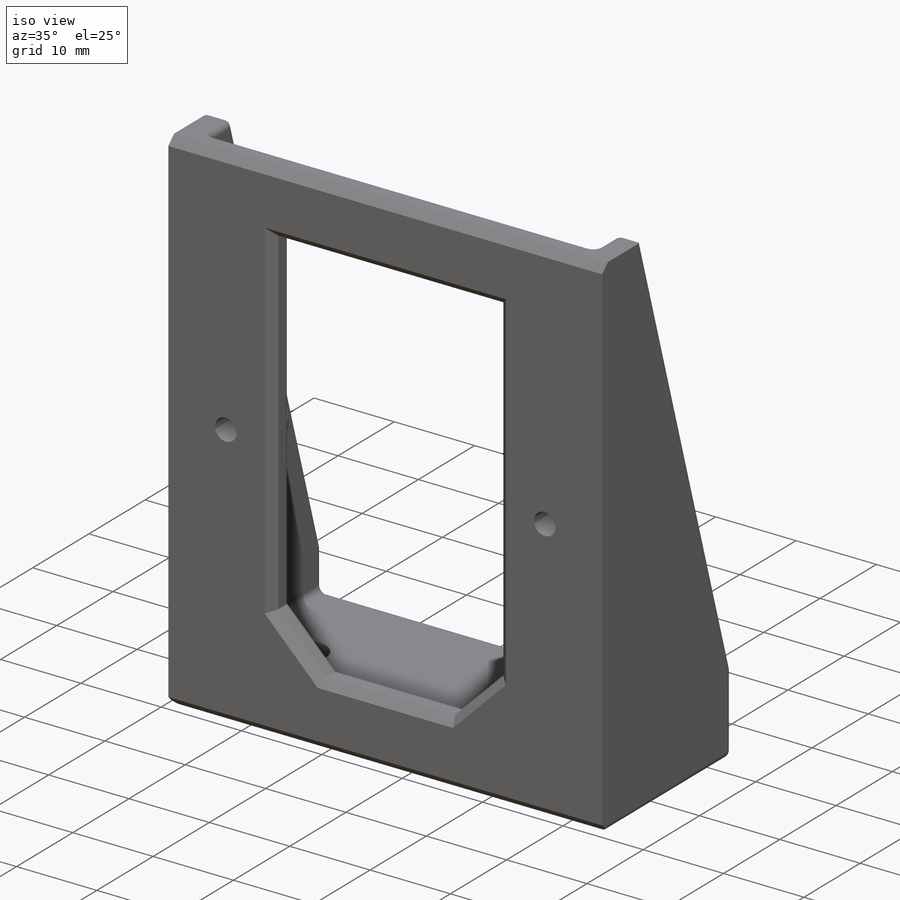
[diagram: iso view]
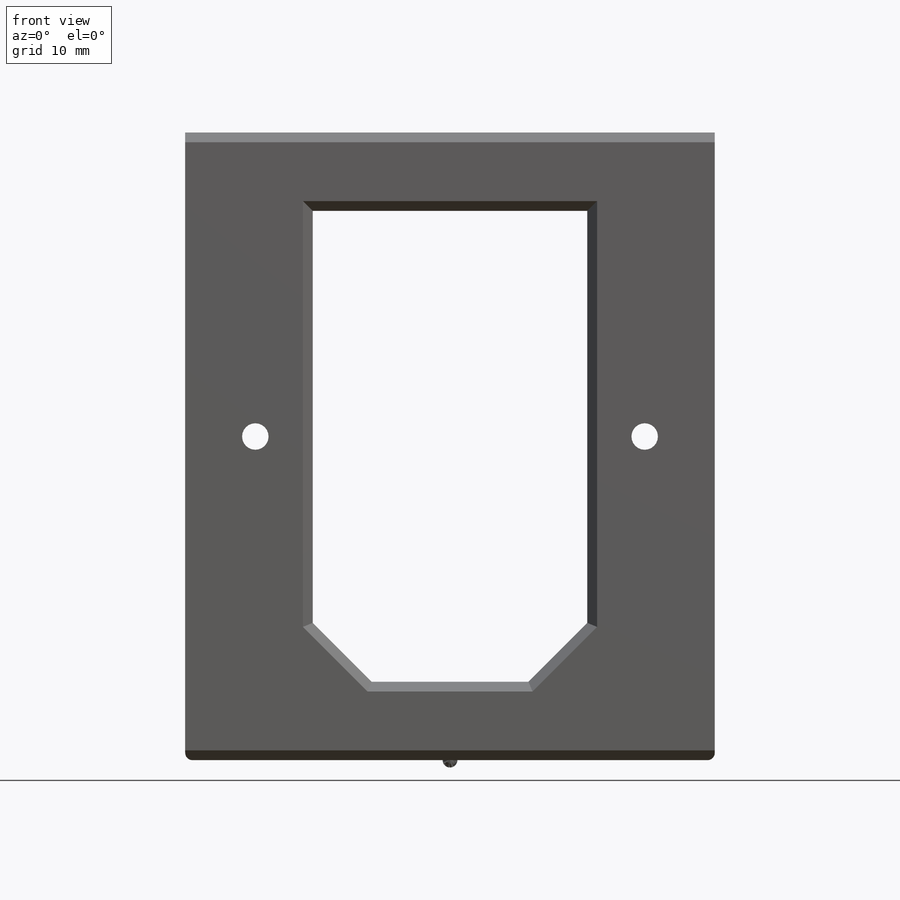
[diagram: front view]
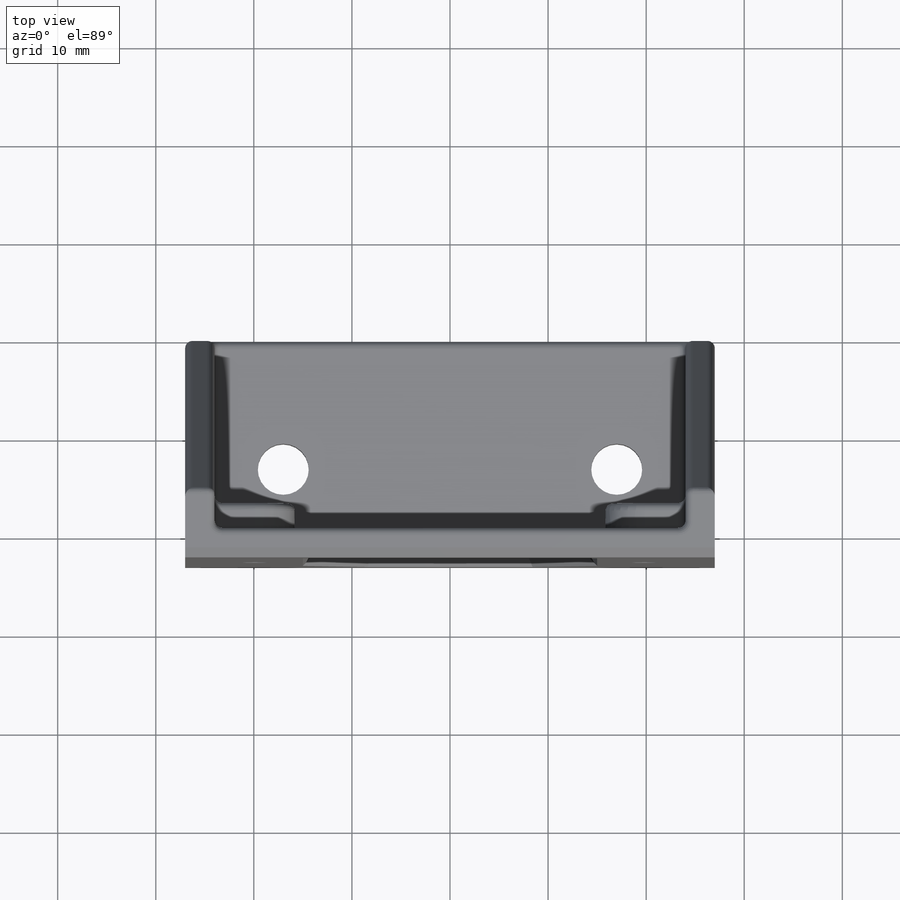
[diagram: top view]
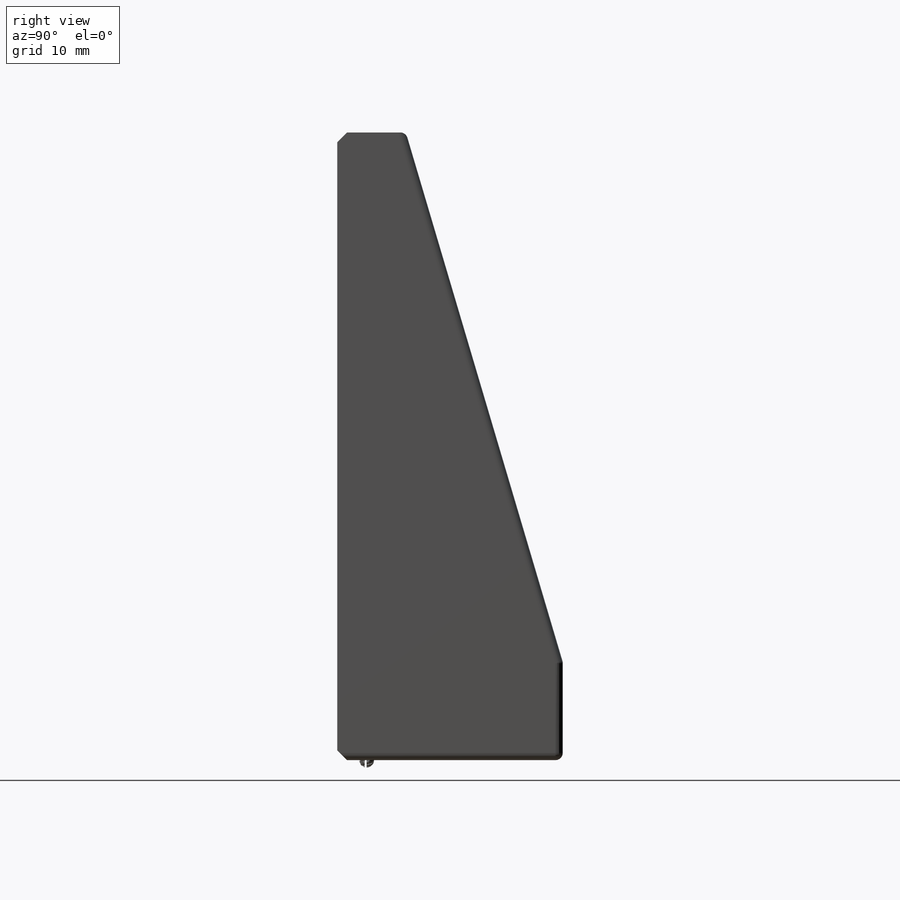
[diagram: right view]
SOLIDWORKS PART (.sldprt)
format: sldprt  version: not decoded by parser v0  size: 482,816 bytes
history: native  units: mm
features: sketch x5, extrude x4, material x1, mirror x1, cut_extrude x1, fillet x1, chamfer x1 (+13 scaffold rows collapsed)
feature tree (27):
  scaffold x13  (default folders/planes/origin — collapsed)
  material  "ABS"
  sketch  "Sketch1"  dims[c1.D7=2.7mm c1.D8=2.7mm c1.D9=2.7mm c1.D1=54.0mm c1.D2=64.0mm c1.D3=48.0mm c1.D4=16.0mm c1.D5=28.0mm c1.D6=6.0mm c2.D8=39.7mm c2.D9=33.0mm c2.D10=23.0mm]
  extrude  "Boss-Extrude1"  Depth=3mm
  sketch  "Sketch2"  dims[c1.D1=20.2mm c1.D2=4.0mm c1.D3=10.0mm c1.D4=4.0mm c2.D1=23.0mm]
  extrude  "Boss-Extrude2"  Depth=3mm
  mirror  "Mirror1"
  sketch  "Sketch3"  dims[D1=8.0mm]
  extrude  "Boss-Extrude3"  Depth=3mm
  sketch  "Sketch4"
  cut_extrude  "Cut-Extrude2"  [1 undecoded]
  sketch  "Sketch5"  dims[c1.D2=5.2mm c1.D3=5.2mm c1.D4=5.2mm c1.D1=10.0mm c2.D3=7.0mm c2.D4=7.0mm]
  extrude  "Boss-Extrude4"  Depth=5mm
  fillet  "Fillet3"  Radius=0.75mm
  chamfer  "Chamfer1"  Distance=1mm Angle=45deg
decode coverage: 10 of 13 modeling features carry decoded parameters
note: 1 parameter value undecoded
note: suppression state not decoded; provenance and decode notes live in map.json
